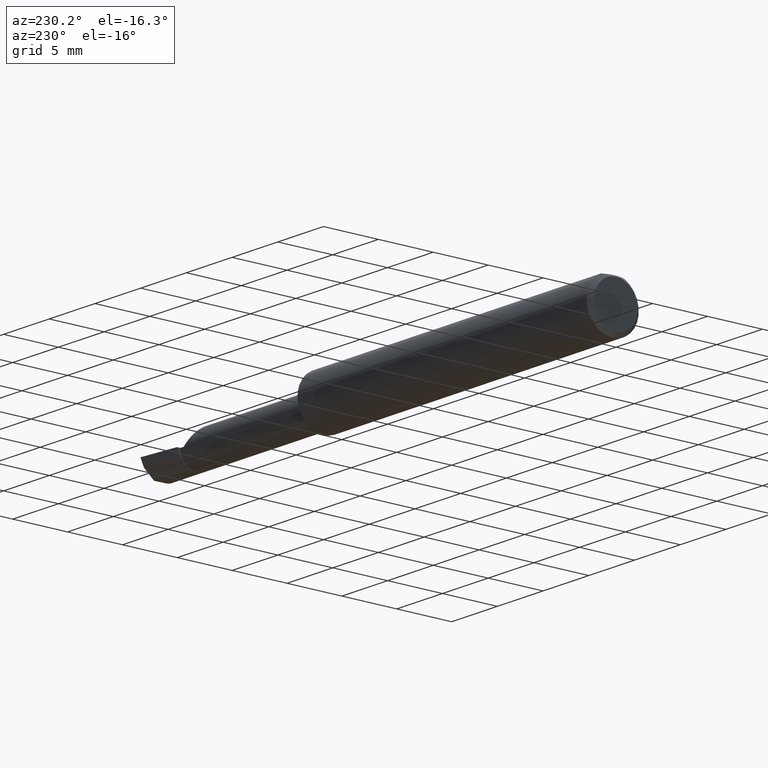
[diagram: clean part render]
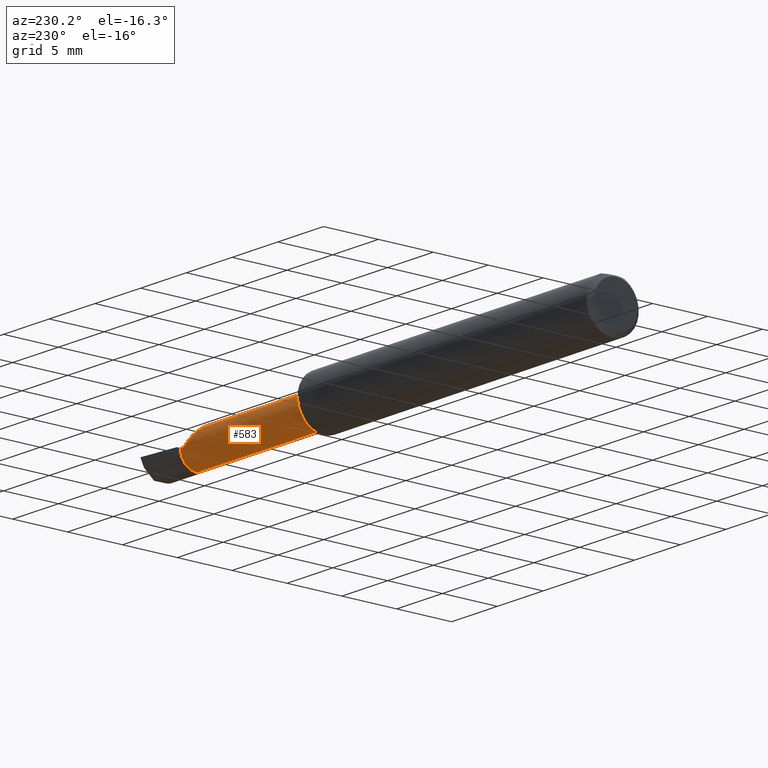
[diagram: same view with one face highlighted and labeled with its STEP entity id]
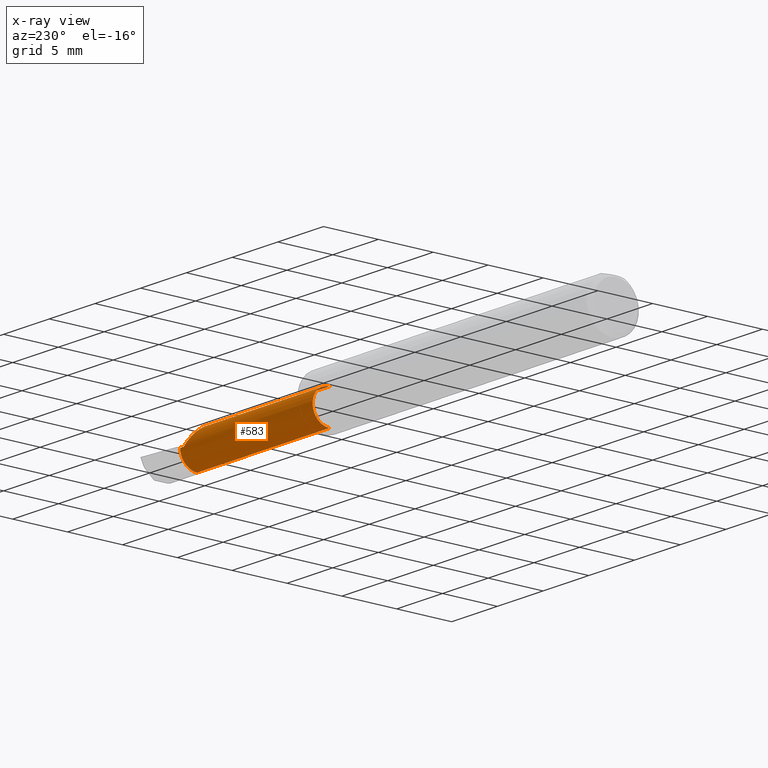
[diagram: x-ray of the same camera — body ghosted, the highlighted face saturated]
A machine part, auxiliary view. The second image highlights one B-rep face of the part: STEP entity #583.
The next image is the same camera in x-ray: the body ghosted, the highlighted face saturated — about 0% of this face is hidden behind the body in this view.
In plain terms, the highlighted cylindrical surface (edge-blend (fillet) strip) has radius 1.5215 mm, axis along (-1, -0, -0).
Its self-contained STEP definition (entity closure, byte-faithful):
#8 = DIRECTION ( 'NONE',  ( -1.000000000000000000, -0.0000000000000000000, -0.0000000000000000000 ) ) ;
#9 = EDGE_CURVE ( 'NONE', #399, #62, #520, .T. ) ;
#26 = CARTESIAN_POINT ( 'NONE',  ( 1.284999999999999920, -0.04150000000000000216, 0.05989999999999993940 ) ) ;
#62 = VERTEX_POINT ( 'NONE', #74 ) ;
#69 = CARTESIAN_POINT ( 'NONE',  ( 0.0000000000000000000, -0.04149999999999999523, -0.05989999999999997410 ) ) ;
#74 = CARTESIAN_POINT ( 'NONE',  ( 1.854999999999999982, -0.04150000000000000216, -0.05990000000000000185 ) ) ;
#79 = DIRECTION ( 'NONE',  ( -1.000000000000000000, -0.0000000000000000000, -0.0000000000000000000 ) ) ;
#106 = CARTESIAN_POINT ( 'NONE',  ( 0.0000000000000000000, -0.04150000000000000216, 0.0000000000000000000 ) ) ;
#116 = DIRECTION ( 'NONE',  ( 0.0000000000000000000, 0.0000000000000000000, 1.000000000000000000 ) ) ;
#136 = CARTESIAN_POINT ( 'NONE',  ( 1.854999999999999982, -0.04150000000000000216, 0.0000000000000000000 ) ) ;
#151 = CARTESIAN_POINT ( 'NONE',  ( 5.659797890829555466E-31, 0.01839999999999995806, 1.030335658007946046E-15 ) ) ;
#162 = LINE ( 'NONE', #201, #408 ) ;
#167 = DIRECTION ( 'NONE',  ( 1.000000000000000000, 0.0000000000000000000, 0.0000000000000000000 ) ) ;
#191 = EDGE_CURVE ( 'NONE', #200, #681, #221, .T. ) ;
#200 = VERTEX_POINT ( 'NONE', #654 ) ;
#201 = CARTESIAN_POINT ( 'NONE',  ( 0.0000000000000000000, -0.04150000000000000216, 0.05989999999999997410 ) ) ;
#221 =( BOUNDED_CURVE ( )  B_SPLINE_CURVE ( 3, ( #355, #700, #651, #646 ),
 .UNSPECIFIED., .F., .T. ) 
 B_SPLINE_CURVE_WITH_KNOTS ( ( 4, 4 ),
 ( 0.0000000000000000000, 1.570796326794896558 ),
 .UNSPECIFIED. ) 
 CURVE ( )  GEOMETRIC_REPRESENTATION_ITEM ( )  RATIONAL_B_SPLINE_CURVE ( ( 1.000000000000000000, 0.8047378541243649375, 0.8047378541243649375, 1.000000000000000000 ) ) 
 REPRESENTATION_ITEM ( '' )  );
#239 = CIRCLE ( 'NONE', #333, 0.05989999999999993940 ) ;
#256 = DIRECTION ( 'NONE',  ( 0.0000000000000000000, 0.0000000000000000000, 1.000000000000000000 ) ) ;
#272 = EDGE_LOOP ( 'NONE', ( #502, #319, #725, #557, #567, #609 ) ) ;
#277 = EDGE_CURVE ( 'NONE', #200, #616, #162, .T. ) ;
#294 = EDGE_CURVE ( 'NONE', #616, #356, #239, .T. ) ;
#298 = LINE ( 'NONE', #151, #663 ) ;
#306 = DIRECTION ( 'NONE',  ( -1.000000000000000000, -0.0000000000000000000, -0.0000000000000000000 ) ) ;
#319 = ORIENTED_EDGE ( 'NONE', *, *, #475, .T. ) ;
#320 = FACE_OUTER_BOUND ( 'NONE', #272, .T. ) ;
#329 = CARTESIAN_POINT ( 'NONE',  ( 1.840000000000000080, 0.01839999999999989908, 1.959434878635762025E-17 ) ) ;
#333 = AXIS2_PLACEMENT_3D ( 'NONE', #691, #8, #116 ) ;
#337 = DIRECTION ( 'NONE',  ( -1.000000000000000000, -0.0000000000000000000, -0.0000000000000000000 ) ) ;
#355 = CARTESIAN_POINT ( 'NONE',  ( 1.780099999999999349, -0.04150000000000000216, 0.05989999999999997410 ) ) ;
#356 = VERTEX_POINT ( 'NONE', #630 ) ;
#363 = DIRECTION ( 'NONE',  ( 0.0000000000000000000, 0.0000000000000000000, 1.000000000000000000 ) ) ;
#399 = VERTEX_POINT ( 'NONE', #454 ) ;
#408 = VECTOR ( 'NONE', #509, 39.37007874015748143 ) ;
#454 = CARTESIAN_POINT ( 'NONE',  ( 1.854999999999999982, 0.01839999999999999969, 1.030335658007946637E-15 ) ) ;
#475 = EDGE_CURVE ( 'NONE', #62, #356, #564, .T. ) ;
#502 = ORIENTED_EDGE ( 'NONE', *, *, #9, .T. ) ;
#509 = DIRECTION ( 'NONE',  ( -1.000000000000000000, -0.0000000000000000000, -0.0000000000000000000 ) ) ;
#520 = CIRCLE ( 'NONE', #628, 0.05990000000000000185 ) ;
#557 = ORIENTED_EDGE ( 'NONE', *, *, #277, .F. ) ;
#564 = LINE ( 'NONE', #69, #644 ) ;
#567 = ORIENTED_EDGE ( 'NONE', *, *, #191, .T. ) ;
#583 = ADVANCED_FACE ( 'NONE', ( #320 ), #723, .T. ) ;
#609 = ORIENTED_EDGE ( 'NONE', *, *, #680, .T. ) ;
#616 = VERTEX_POINT ( 'NONE', #26 ) ;
#626 = AXIS2_PLACEMENT_3D ( 'NONE', #106, #337, #363 ) ;
#628 = AXIS2_PLACEMENT_3D ( 'NONE', #136, #306, #256 ) ;
#630 = CARTESIAN_POINT ( 'NONE',  ( 1.284999999999999920, -0.04149999999999999523, -0.05989999999999993940 ) ) ;
#644 = VECTOR ( 'NONE', #79, 39.37007874015748143 ) ;
#646 = CARTESIAN_POINT ( 'NONE',  ( 1.840000000000000080, 0.01839999999999989908, 1.959434878635762025E-17 ) ) ;
#651 = CARTESIAN_POINT ( 'NONE',  ( 1.804911392386147506, 0.01839999999999996499, 0.03508860761385158150 ) ) ;
#654 = CARTESIAN_POINT ( 'NONE',  ( 1.780099999999999349, -0.04150000000000000216, 0.05989999999999997410 ) ) ;
#663 = VECTOR ( 'NONE', #167, 39.37007874015748143 ) ;
#680 = EDGE_CURVE ( 'NONE', #681, #399, #298, .T. ) ;
#681 = VERTEX_POINT ( 'NONE', #329 ) ;
#691 = CARTESIAN_POINT ( 'NONE',  ( 1.284999999999999920, -0.04150000000000000216, 0.0000000000000000000 ) ) ;
#700 = CARTESIAN_POINT ( 'NONE',  ( 1.780099999999999349, -0.006411392386148411990, 0.05989999999999994634 ) ) ;
#723 = CYLINDRICAL_SURFACE ( 'NONE', #626, 0.05989999999999997410 ) ;
#725 = ORIENTED_EDGE ( 'NONE', *, *, #294, .F. ) ;